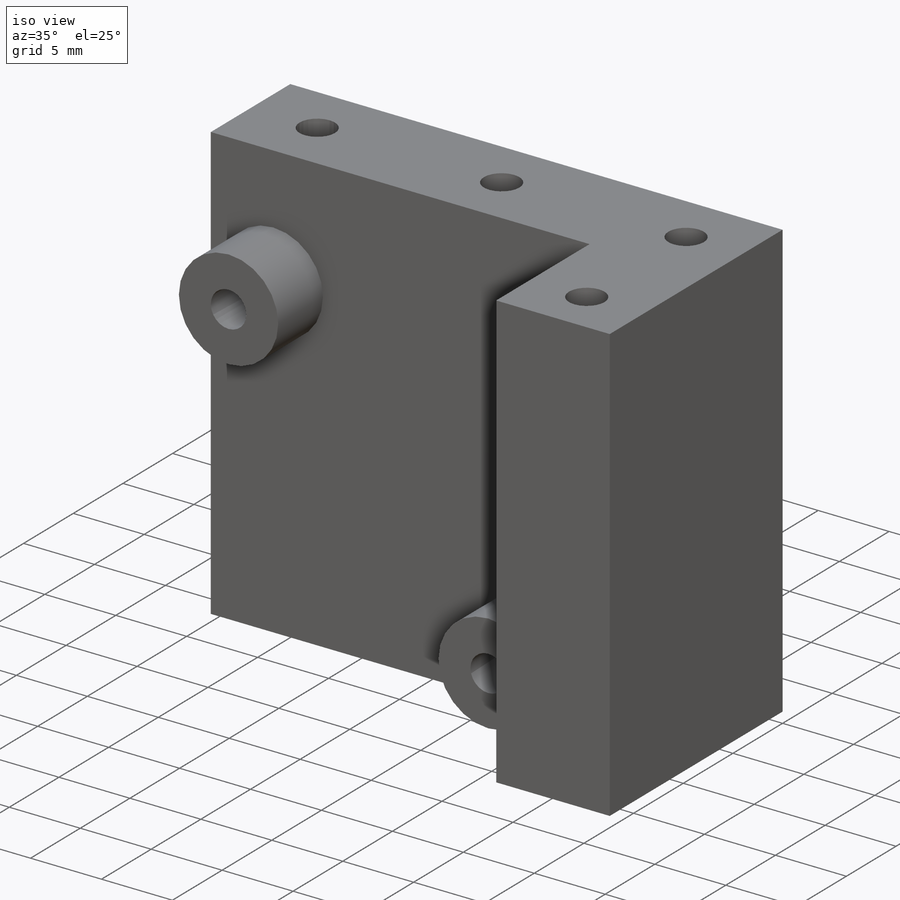
[diagram: iso view]
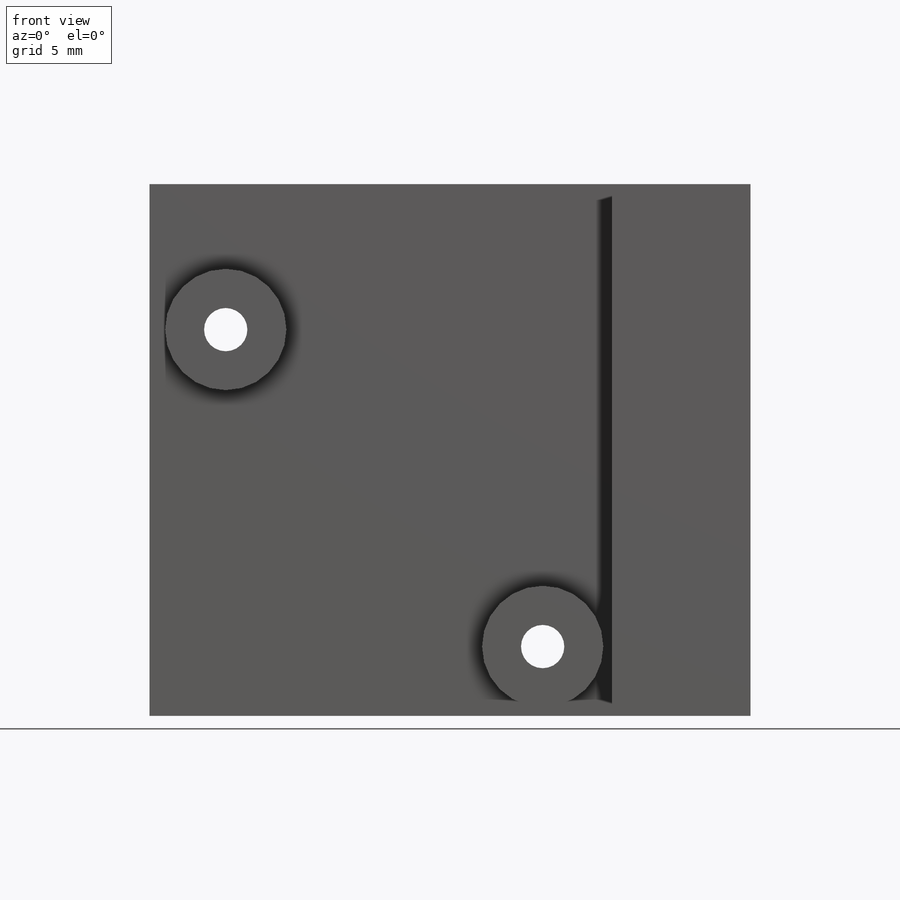
[diagram: front view]
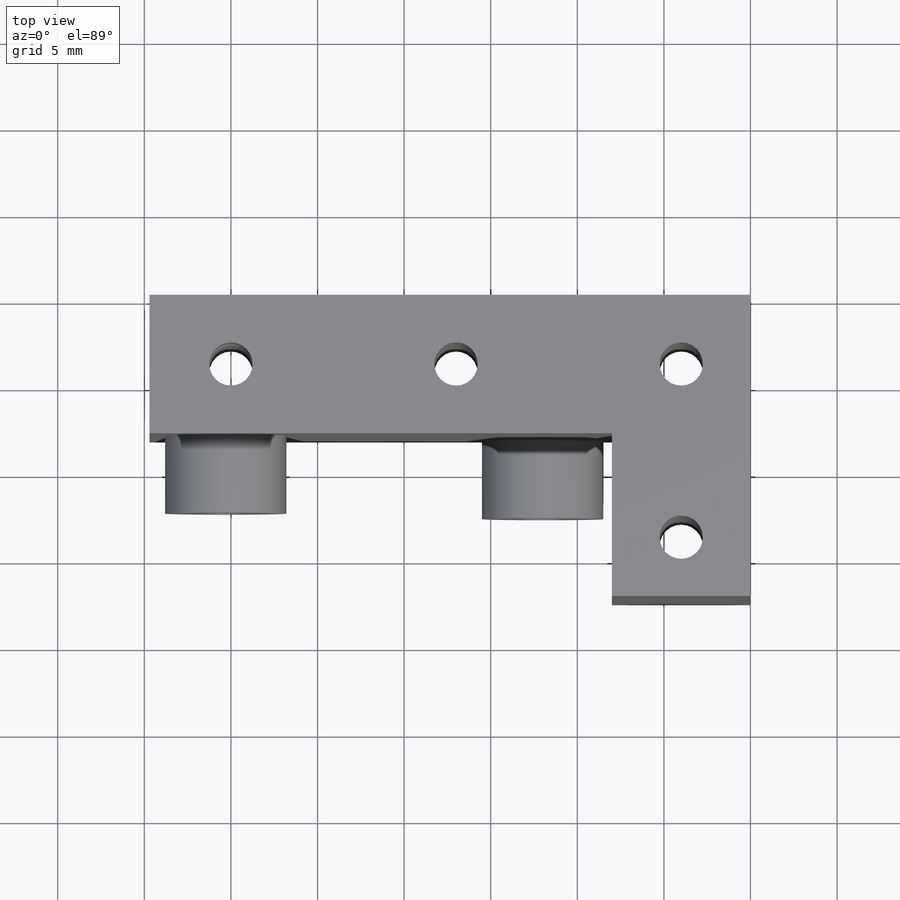
[diagram: top view]
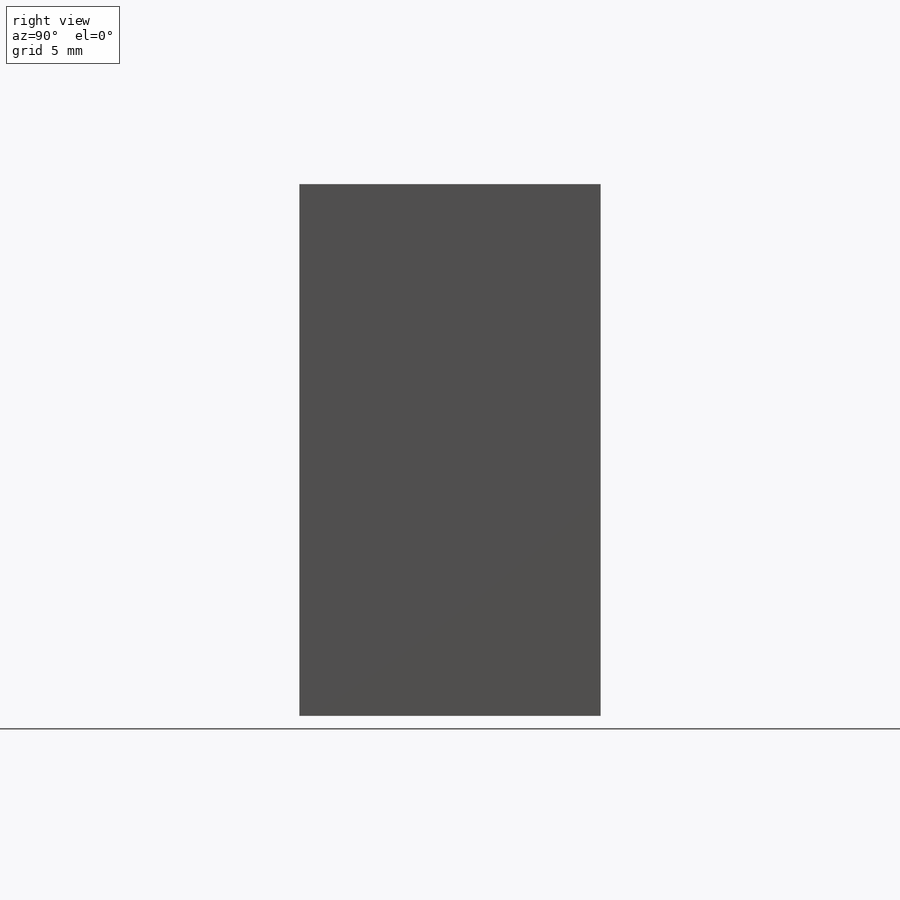
[diagram: right view]
SOLIDWORKS PART (.sldprt)
format: sldprt  version: not decoded by parser v0  size: 233,472 bytes
history: native  units: mm
features: sketch x5, plane x3, extrude x3, cut_extrude x2, material x1 (+8 scaffold rows collapsed)
feature tree (22):
  scaffold x8  (default folders/planes/origin — collapsed)
  material  "Matériau <non spécifié>"
  plane  "Plan de face"
  plane  "Plan de dessus"
  plane  "Plan de droite"
  sketch  "Esquisse1"  dims[c1.D3=6.0mm c1.D1=~52.808305mm c1.D2=~100.458589mm c2.D1=30.7mm c2.D2=34.7mm c2.D4=9.0mm c2.D5=9.0mm]
  extrude  "Boss.-Extru.1"  Depth=8mm
  sketch  "Esquisse2"  dims[c1.D1=~5.118693mm c1.D3=7.0mm c1.D4=~6.653809mm c1.D6=2.5mm c1.D7=2.5mm c2.D1=8.4mm c2.D2=8.4mm c2.D4=26.7mm c2.D5=4.0mm c2.D8=12.0mm c3.D4=30.3mm]
  extrude  "Boss.-Extru.2"  Depth=9mm
  sketch  "Esquisse3"  dims[c1.D1=31.0mm c1.D2=~5.763799mm c2.D1=8.0mm]
  extrude  "Boss.-Extru.3"  Depth=9.4mm
  sketch  "Esquisse4"  dims[c1.D1=~3.069241mm c1.D2=2.5mm c1.D3=~2.967693mm c1.D4=~2.517077mm c1.D5=~1.970679mm c2.D1=14.0mm c2.D3=4.0mm c2.D4=13.0mm c2.D5=26.0mm c2.D6=4.0mm]
  cut_extrude  "Enlèv. mat.-Extru.1"  [1 undecoded]
  sketch  "Esquisse6"  dims[D1=2.5mm]
  cut_extrude  "Enlèv. mat.-Extru.2"  [1 undecoded]
decode coverage: 8 of 10 modeling features carry decoded parameters
note: ~ marks probable driven/reference dimensions
note: 2 parameter values undecoded
note: suppression state not decoded; provenance and decode notes live in map.json
